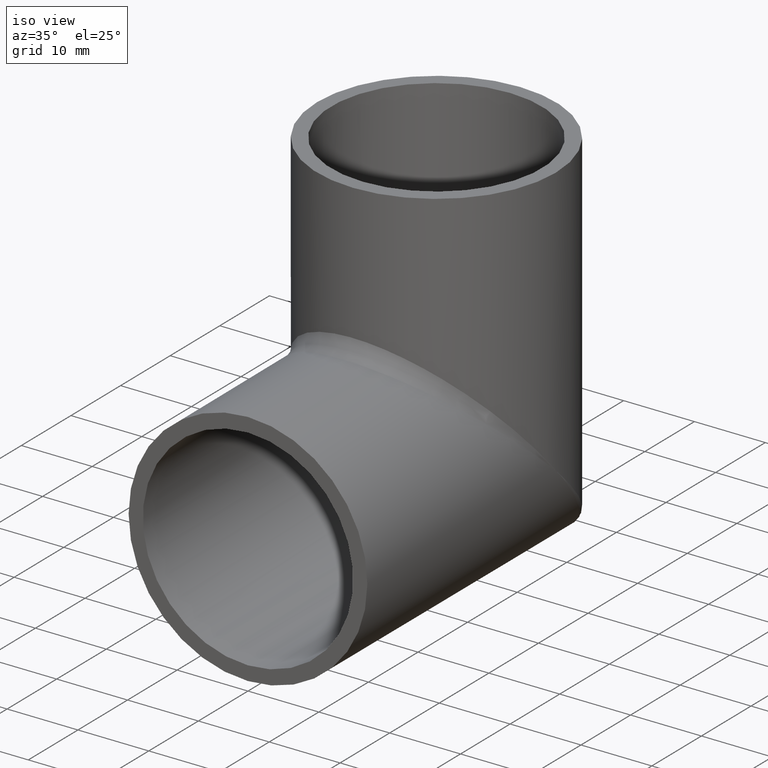
[diagram: clean part render]
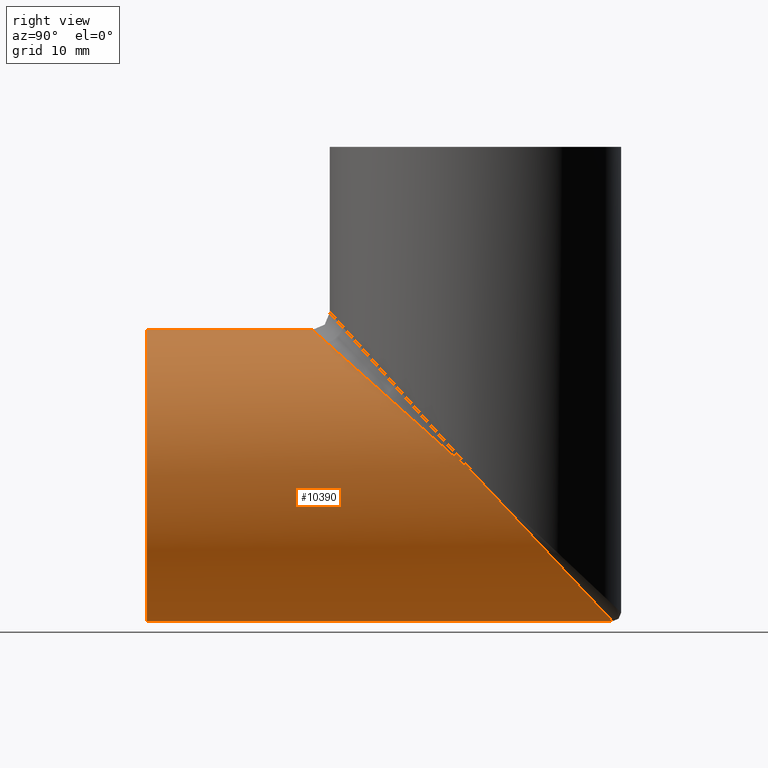
[diagram: tour spotlight — one face highlighted and labeled with its STEP entity id]
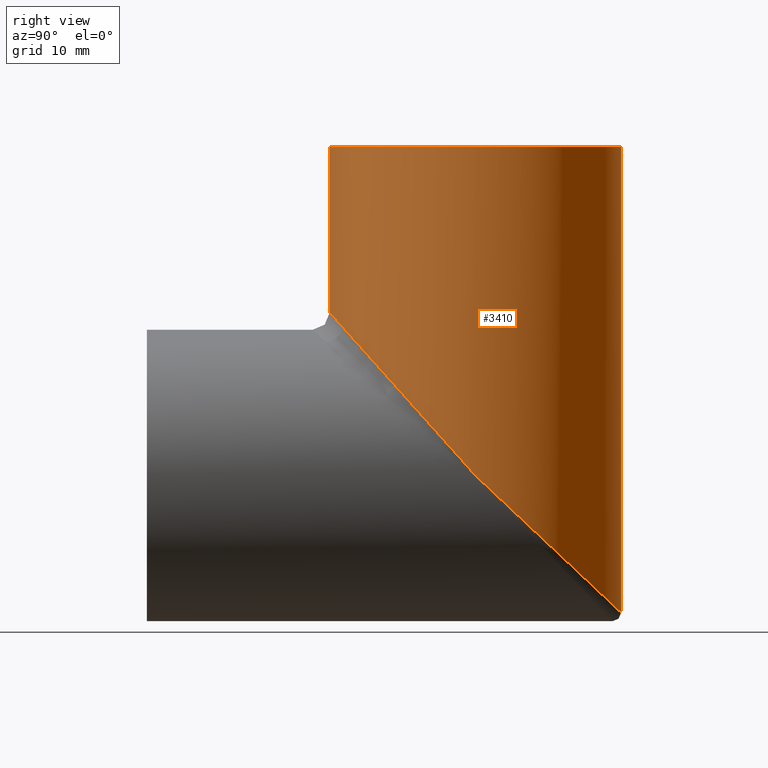
[diagram: tour spotlight — one face highlighted and labeled with its STEP entity id]
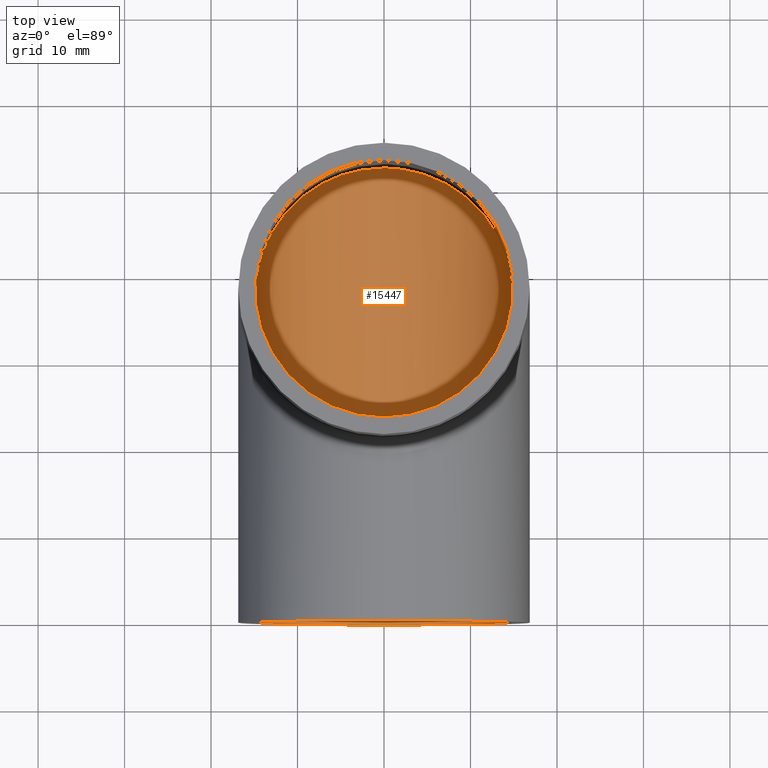
[diagram: tour spotlight — one face highlighted and labeled with its STEP entity id]
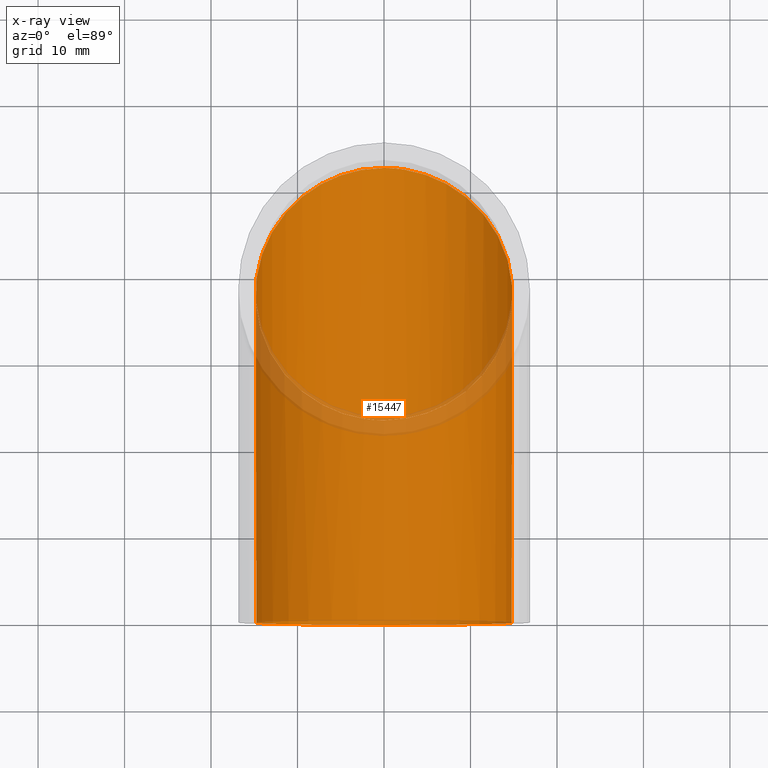
[diagram: x-ray of the same camera — body ghosted, this tour face saturated]
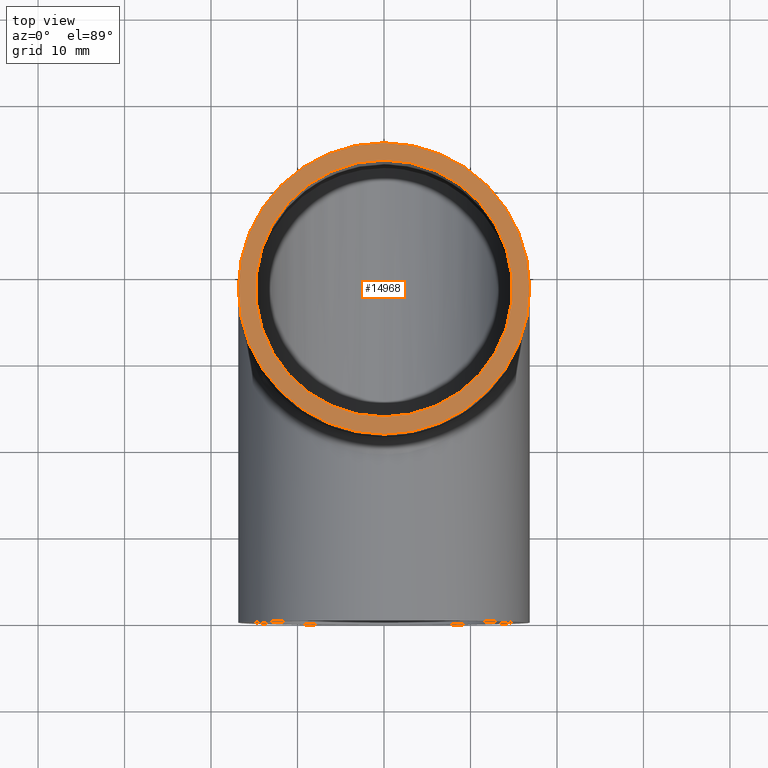
[diagram: tour spotlight — one face highlighted and labeled with its STEP entity id]
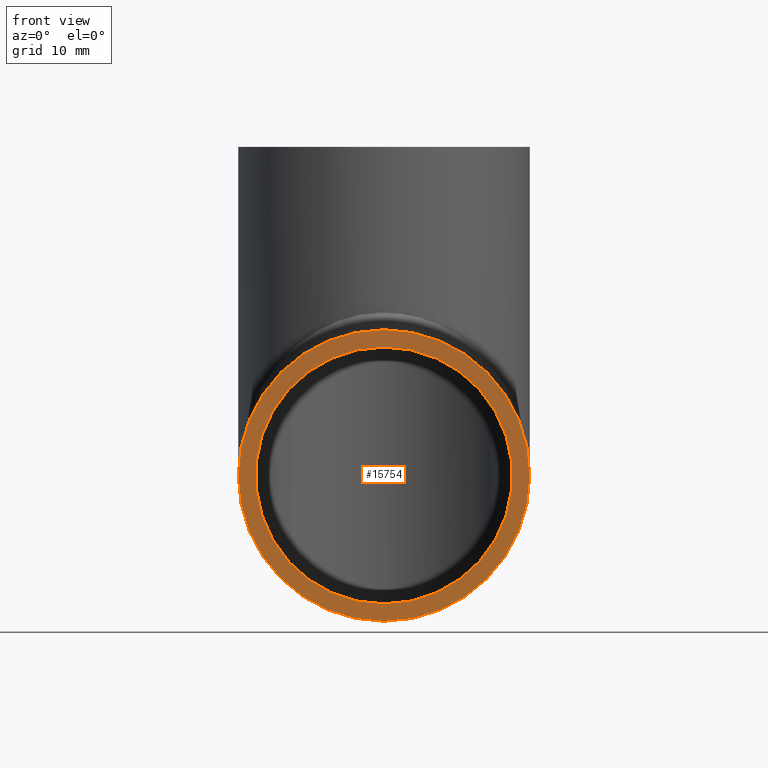
[diagram: tour spotlight — one face highlighted and labeled with its STEP entity id]
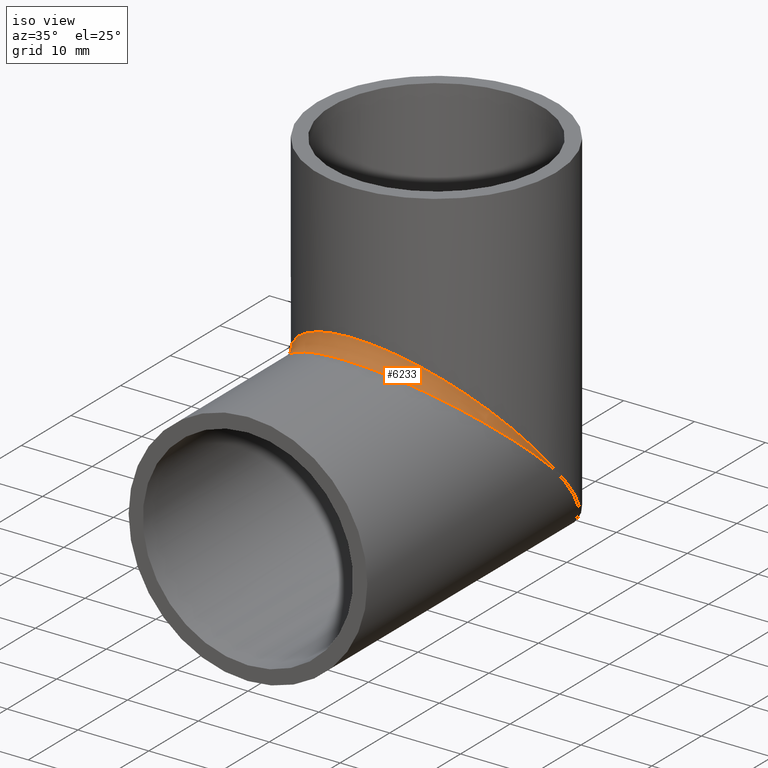
[diagram: tour spotlight — one face highlighted and labeled with its STEP entity id]
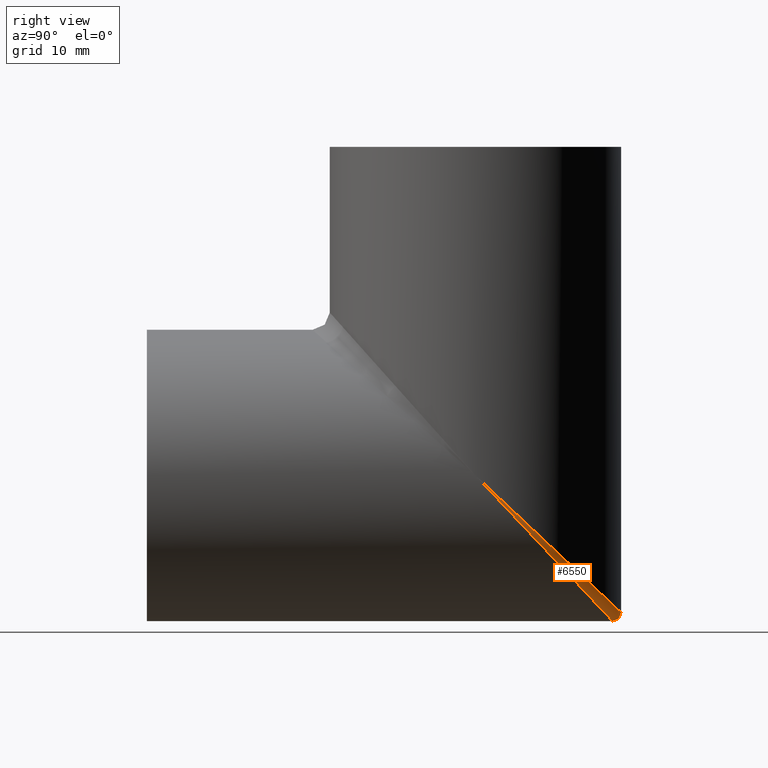
[diagram: tour spotlight — one face highlighted and labeled with its STEP entity id]
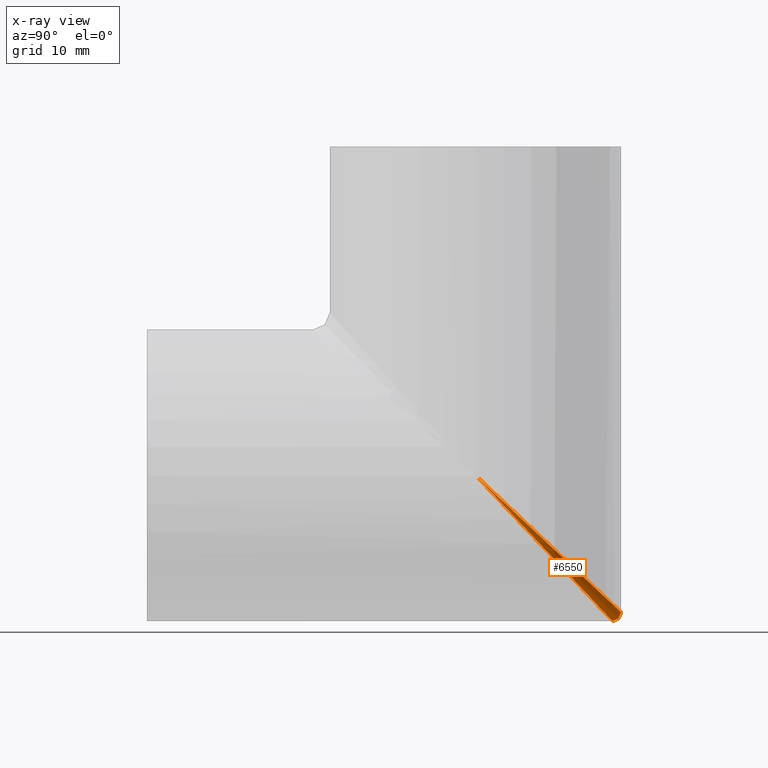
[diagram: x-ray of the same camera — body ghosted, this tour face saturated]
A machine part: a face-by-face anatomy tour. The part has 316 B-rep faces; the first image is the clean iso view, then the 7 largest visible faces are spotlighted one at a time (largest first), each with its STEP entity span.

Face 1 — right view, entity #10390. In plain terms, the highlighted cylindrical surface (bore or boss wall) has radius 16.85 mm, axis along (0, -1, 0).
Definition (entity closure, byte-faithful):
#103 = AXIS2_PLACEMENT_3D ( 'NONE', #13787, #447, #5558 ) ;
#204 = FACE_OUTER_BOUND ( 'NONE', #7675, .T. ) ;
#315 = CARTESIAN_POINT ( 'NONE',  ( 16.85000000000000142, 0.3000000000000085931, 33.69999999999999574 ) ) ;
#447 = DIRECTION ( 'NONE',  ( 0.000000000000000000, 1.000000000000000000, 0.000000000000000000 ) ) ;
#1679 = CARTESIAN_POINT ( 'NONE',  ( -16.85000000000000142, 38.00000000000000000, -7.347880794884122694E-16 ) ) ;
#1846 = CARTESIAN_POINT ( 'NONE',  ( 16.85000000000000142, 38.00000000000000000, -2.189056153475896345E-16 ) ) ;
#1960 = CARTESIAN_POINT ( 'NONE',  ( -16.85000000000000142, 38.00000000000000000, -7.347880794884122694E-16 ) ) ;
#1994 = CARTESIAN_POINT ( 'NONE',  ( -16.84999999999999076, 69.69999999999998863, -33.70000000000000284 ) ) ;
#2688 =( BOUNDED_CURVE ( )  B_SPLINE_CURVE ( 3, ( #3159, #1994, #9320, #1846 ),
 .UNSPECIFIED., .F., .F. ) 
 B_SPLINE_CURVE_WITH_KNOTS ( ( 4, 4 ),
 ( 1.570796326794896780, 4.712388980384689674 ),
 .UNSPECIFIED. ) 
 CURVE ( )  GEOMETRIC_REPRESENTATION_ITEM ( )  RATIONAL_B_SPLINE_CURVE ( ( 1.000000000000000000, 0.3333333333333333703, 0.3333333333333333703, 1.000000000000000000 ) ) 
 REPRESENTATION_ITEM ( '' )  );
#3107 = DIRECTION ( 'NONE',  ( 0.000000000000000000, -1.000000000000000000, 3.867305681517959248E-17 ) ) ;
#3159 = CARTESIAN_POINT ( 'NONE',  ( -16.85000000000000142, 38.00000000000000000, -7.347880794884122694E-16 ) ) ;
#3257 = AXIS2_PLACEMENT_3D ( 'NONE', #5648, #3107, #11746 ) ;
#3487 = EDGE_CURVE ( 'NONE', #12742, #12742, #10950, .T. ) ;
#3822 = EDGE_CURVE ( 'NONE', #6329, #5596, #2688, .T. ) ;
#3878 =( BOUNDED_CURVE ( )  B_SPLINE_CURVE ( 3, ( #12643, #315, #14051, #1679 ),
 .UNSPECIFIED., .F., .F. ) 
 B_SPLINE_CURVE_WITH_KNOTS ( ( 4, 4 ),
 ( 4.712388980384689674, 7.853981633974482790 ),
 .UNSPECIFIED. ) 
 CURVE ( )  GEOMETRIC_REPRESENTATION_ITEM ( )  RATIONAL_B_SPLINE_CURVE ( ( 1.000000000000000000, 0.3333333333333333703, 0.3333333333333333703, 1.000000000000000000 ) ) 
 REPRESENTATION_ITEM ( '' )  );
#5558 = DIRECTION ( 'NONE',  ( 0.000000000000000000, 0.000000000000000000, 1.000000000000000000 ) ) ;
#5596 = VERTEX_POINT ( 'NONE', #7024 ) ;
#5648 = CARTESIAN_POINT ( 'NONE',  ( 0.000000000000000000, 56.63500000000000512, -2.190248572727696322E-15 ) ) ;
#6329 = VERTEX_POINT ( 'NONE', #1960 ) ;
#6405 = FACE_OUTER_BOUND ( 'NONE', #7017, .T. ) ;
#7017 = EDGE_LOOP ( 'NONE', ( #9083 ) ) ;
#7024 = CARTESIAN_POINT ( 'NONE',  ( 16.85000000000000142, 38.00000000000000000, -2.189056153475896345E-16 ) ) ;
#7675 = EDGE_LOOP ( 'NONE', ( #12079, #14971 ) ) ;
#8168 = CYLINDRICAL_SURFACE ( 'NONE', #3257, 16.85000000000000142 ) ;
#9083 = ORIENTED_EDGE ( 'NONE', *, *, #3487, .T. ) ;
#9320 = CARTESIAN_POINT ( 'NONE',  ( 16.84999999999999076, 69.69999999999998863, -33.70000000000000995 ) ) ;
#10390 = ADVANCED_FACE ( 'NONE', ( #204, #6405 ), #8168, .T. ) ;
#10950 = CIRCLE ( 'NONE', #103, 16.85000000000000142 ) ;
#11746 = DIRECTION ( 'NONE',  ( 0.000000000000000000, 0.000000000000000000, -1.000000000000000000 ) ) ;
#12079 = ORIENTED_EDGE ( 'NONE', *, *, #14761, .T. ) ;
#12643 = CARTESIAN_POINT ( 'NONE',  ( 16.85000000000000142, 38.00000000000000000, -2.189056153475896345E-16 ) ) ;
#12693 = CARTESIAN_POINT ( 'NONE',  ( 0.000000000000000000, 0.000000000000000000, 16.85000000000000142 ) ) ;
#12742 = VERTEX_POINT ( 'NONE', #12693 ) ;
#13787 = CARTESIAN_POINT ( 'NONE',  ( 0.000000000000000000, 0.000000000000000000, 0.000000000000000000 ) ) ;
#14051 = CARTESIAN_POINT ( 'NONE',  ( -16.84999999999999076, 0.3000000000000085931, 33.70000000000000284 ) ) ;
#14761 = EDGE_CURVE ( 'NONE', #5596, #6329, #3878, .T. ) ;
#14971 = ORIENTED_EDGE ( 'NONE', *, *, #3822, .T. ) ;

Face 2 — right view, entity #3410. In plain terms, the highlighted cylindrical surface (bore or boss wall) has radius 16.85 mm, axis along (0, 0, -1).
Definition (entity closure, byte-faithful):
#976 = DIRECTION ( 'NONE',  ( 0.000000000000000000, 6.123233995736766036E-17, 1.000000000000000000 ) ) ;
#1184 = EDGE_LOOP ( 'NONE', ( #15584, #12953 ) ) ;
#1575 = EDGE_CURVE ( 'NONE', #6329, #5596, #4791, .T. ) ;
#1790 = AXIS2_PLACEMENT_3D ( 'NONE', #4117, #11610, #7846 ) ;
#1960 = CARTESIAN_POINT ( 'NONE',  ( -16.85000000000000142, 38.00000000000000000, -7.347880794884122694E-16 ) ) ;
#2971 = CIRCLE ( 'NONE', #6333, 16.85000000000000142 ) ;
#3405 = CARTESIAN_POINT ( 'NONE',  ( 16.85000000000000142, 71.69999999999998863, -31.69999999999998508 ) ) ;
#3410 = ADVANCED_FACE ( 'NONE', ( #5942, #12307 ), #15750, .T. ) ;
#4117 = CARTESIAN_POINT ( 'NONE',  ( 0.000000000000000000, 38.00000000000000000, 37.99999999999999289 ) ) ;
#4791 =( BOUNDED_CURVE ( )  B_SPLINE_CURVE ( 3, ( #5685, #6855, #5576, #15622 ),
 .UNSPECIFIED., .F., .F. ) 
 B_SPLINE_CURVE_WITH_KNOTS ( ( 4, 4 ),
 ( 4.712388980384689674, 7.853981633974482790 ),
 .UNSPECIFIED. ) 
 CURVE ( )  GEOMETRIC_REPRESENTATION_ITEM ( )  RATIONAL_B_SPLINE_CURVE ( ( 1.000000000000000000, 0.3333333333333333703, 0.3333333333333333703, 1.000000000000000000 ) ) 
 REPRESENTATION_ITEM ( '' )  );
#5164 = EDGE_LOOP ( 'NONE', ( #14823 ) ) ;
#5576 = CARTESIAN_POINT ( 'NONE',  ( 16.84999999999999432, 4.300000000000012257, 37.69999999999997442 ) ) ;
#5596 = VERTEX_POINT ( 'NONE', #7024 ) ;
#5685 = CARTESIAN_POINT ( 'NONE',  ( -16.85000000000000142, 38.00000000000000000, -7.347880794884122694E-16 ) ) ;
#5868 = CARTESIAN_POINT ( 'NONE',  ( 0.000000000000000000, 38.00000000000000000, 37.99999999999999289 ) ) ;
#5942 = FACE_OUTER_BOUND ( 'NONE', #5164, .T. ) ;
#6329 = VERTEX_POINT ( 'NONE', #1960 ) ;
#6333 = AXIS2_PLACEMENT_3D ( 'NONE', #5868, #976, #9651 ) ;
#6583 = CARTESIAN_POINT ( 'NONE',  ( 0.000000000000000000, 21.14999999999999858, 37.99999999999999289 ) ) ;
#6855 = CARTESIAN_POINT ( 'NONE',  ( -16.85000000000000497, 4.300000000000012257, 37.69999999999997442 ) ) ;
#7024 = CARTESIAN_POINT ( 'NONE',  ( 16.85000000000000142, 38.00000000000000000, -2.189056153475896345E-16 ) ) ;
#7846 = DIRECTION ( 'NONE',  ( -1.000000000000000000, 0.000000000000000000, 0.000000000000000000 ) ) ;
#8332 = CARTESIAN_POINT ( 'NONE',  ( 16.85000000000000142, 38.00000000000000000, -2.189056153475896345E-16 ) ) ;
#9651 = DIRECTION ( 'NONE',  ( 0.000000000000000000, -1.000000000000000000, 0.000000000000000000 ) ) ;
#9842 = EDGE_CURVE ( 'NONE', #12946, #12946, #2971, .T. ) ;
#11610 = DIRECTION ( 'NONE',  ( 0.000000000000000000, 0.000000000000000000, -1.000000000000000000 ) ) ;
#12307 = FACE_OUTER_BOUND ( 'NONE', #1184, .T. ) ;
#12697 =( BOUNDED_CURVE ( )  B_SPLINE_CURVE ( 3, ( #8332, #3405, #14513, #13167 ),
 .UNSPECIFIED., .F., .F. ) 
 B_SPLINE_CURVE_WITH_KNOTS ( ( 4, 4 ),
 ( 1.570796326794896558, 4.712388980384689674 ),
 .UNSPECIFIED. ) 
 CURVE ( )  GEOMETRIC_REPRESENTATION_ITEM ( )  RATIONAL_B_SPLINE_CURVE ( ( 1.000000000000000000, 0.3333333333333333703, 0.3333333333333333703, 1.000000000000000000 ) ) 
 REPRESENTATION_ITEM ( '' )  );
#12946 = VERTEX_POINT ( 'NONE', #6583 ) ;
#12953 = ORIENTED_EDGE ( 'NONE', *, *, #14996, .T. ) ;
#13167 = CARTESIAN_POINT ( 'NONE',  ( -16.85000000000000142, 38.00000000000000000, -7.347880794884122694E-16 ) ) ;
#14513 = CARTESIAN_POINT ( 'NONE',  ( -16.84999999999999076, 71.69999999999998863, -31.69999999999999218 ) ) ;
#14823 = ORIENTED_EDGE ( 'NONE', *, *, #9842, .F. ) ;
#14996 = EDGE_CURVE ( 'NONE', #5596, #6329, #12697, .T. ) ;
#15584 = ORIENTED_EDGE ( 'NONE', *, *, #1575, .T. ) ;
#15622 = CARTESIAN_POINT ( 'NONE',  ( 16.85000000000000142, 38.00000000000000000, -2.189056153475896345E-16 ) ) ;
#15750 = CYLINDRICAL_SURFACE ( 'NONE', #1790, 16.85000000000000142 ) ;

Face 3 — top view, entity #15447. An x-ray twin of the same camera follows (body ghosted, this face saturated) — the face is partly hidden behind the body. In plain terms, the highlighted cylindrical surface (bore or boss wall) has radius 14.85 mm, axis along (0, -1, 0).
Definition (entity closure, byte-faithful):
#290 = EDGE_LOOP ( 'NONE', ( #11003 ) ) ;
#926 = DIRECTION ( 'NONE',  ( 0.000000000000000000, -1.000000000000000000, 3.867305681517958632E-17 ) ) ;
#941 = CYLINDRICAL_SURFACE ( 'NONE', #4618, 14.85000000000000142 ) ;
#2648 = CARTESIAN_POINT ( 'NONE',  ( 0.000000000000000000, 0.000000000000000000, 14.85000000000000142 ) ) ;
#3201 = CARTESIAN_POINT ( 'NONE',  ( 0.000000000000000000, 0.000000000000000000, 0.000000000000000000 ) ) ;
#3740 = CARTESIAN_POINT ( 'NONE',  ( 0.000000000000000000, 52.85000000000000142, -14.85000000000000142 ) ) ;
#4237 = DIRECTION ( 'NONE',  ( -0.000000000000000000, -1.000000000000000000, -0.000000000000000000 ) ) ;
#4239 = EDGE_CURVE ( 'NONE', #8900, #8900, #12290, .T. ) ;
#4291 = DIRECTION ( 'NONE',  ( 0.000000000000000000, 0.000000000000000000, 1.000000000000000000 ) ) ;
#4467 = FACE_OUTER_BOUND ( 'NONE', #290, .T. ) ;
#4618 = AXIS2_PLACEMENT_3D ( 'NONE', #14651, #926, #7267 ) ;
#4948 = CARTESIAN_POINT ( 'NONE',  ( -29.70000000000000995, 52.85000000000000853, -14.85000000000000142 ) ) ;
#6060 = ORIENTED_EDGE ( 'NONE', *, *, #9941, .T. ) ;
#7267 = DIRECTION ( 'NONE',  ( 0.000000000000000000, 0.000000000000000000, -1.000000000000000000 ) ) ;
#8512 = CARTESIAN_POINT ( 'NONE',  ( -29.70000000000000995, 23.15000000000000213, 14.84999999999999964 ) ) ;
#8868 = EDGE_LOOP ( 'NONE', ( #6060 ) ) ;
#8900 = VERTEX_POINT ( 'NONE', #2648 ) ;
#9941 = EDGE_CURVE ( 'NONE', #15616, #15616, #15825, .T. ) ;
#9972 = CARTESIAN_POINT ( 'NONE',  ( -1.818600496733820342E-15, 23.14999999999999858, 14.85000000000000142 ) ) ;
#11003 = ORIENTED_EDGE ( 'NONE', *, *, #4239, .T. ) ;
#11148 = CARTESIAN_POINT ( 'NONE',  ( 29.70000000000000284, 23.14999999999999503, 14.85000000000000497 ) ) ;
#12290 = CIRCLE ( 'NONE', #14326, 14.85000000000000142 ) ;
#13460 = CARTESIAN_POINT ( 'NONE',  ( 29.70000000000000995, 52.85000000000000853, -14.85000000000000142 ) ) ;
#13612 = CARTESIAN_POINT ( 'NONE',  ( 0.000000000000000000, 52.85000000000000142, -14.85000000000000142 ) ) ;
#13872 = CARTESIAN_POINT ( 'NONE',  ( 0.000000000000000000, 52.85000000000000142, -14.85000000000000142 ) ) ;
#14326 = AXIS2_PLACEMENT_3D ( 'NONE', #3201, #4237, #4291 ) ;
#14651 = CARTESIAN_POINT ( 'NONE',  ( 0.000000000000000000, 54.43500000000000227, -2.105167847734300999E-15 ) ) ;
#15266 = FACE_OUTER_BOUND ( 'NONE', #8868, .T. ) ;
#15447 = ADVANCED_FACE ( 'NONE', ( #4467, #15266 ), #941, .F. ) ;
#15616 = VERTEX_POINT ( 'NONE', #13872 ) ;
#15825 =( BOUNDED_CURVE ( )  B_SPLINE_CURVE ( 3, ( #13612, #4948, #8512, #9972, #11148, #13460, #3740 ),
 .UNSPECIFIED., .T., .F. ) 
 B_SPLINE_CURVE_WITH_KNOTS ( ( 4, 3, 4 ),
 ( 0.000000000000000000, 3.141592653589793116, 6.283185307179586232 ),
 .UNSPECIFIED. ) 
 CURVE ( )  GEOMETRIC_REPRESENTATION_ITEM ( )  RATIONAL_B_SPLINE_CURVE ( ( 1.000000000000000000, 0.3333333333333333703, 0.3333333333333333703, 1.000000000000000000, 0.3333333333333333703, 0.3333333333333333703, 1.000000000000000000 ) ) 
 REPRESENTATION_ITEM ( '' )  );

Face 4 — top view, entity #14968. In plain terms, the highlighted planar face has unit normal (0, 0, 1).
Definition (entity closure, byte-faithful):
#393 = FACE_BOUND ( 'NONE', #11993, .T. ) ;
#976 = DIRECTION ( 'NONE',  ( 0.000000000000000000, 6.123233995736766036E-17, 1.000000000000000000 ) ) ;
#1003 = CARTESIAN_POINT ( 'NONE',  ( 0.000000000000000000, 38.00000000000000000, 37.99999999999999289 ) ) ;
#2842 = CARTESIAN_POINT ( 'NONE',  ( 0.000000000000000000, 38.00000000000000000, 37.99999999999999289 ) ) ;
#2971 = CIRCLE ( 'NONE', #6333, 16.85000000000000142 ) ;
#4548 = DIRECTION ( 'NONE',  ( 0.000000000000000000, 6.123233995736766036E-17, 1.000000000000000000 ) ) ;
#5327 = DIRECTION ( 'NONE',  ( 0.000000000000000000, -1.000000000000000000, 0.000000000000000000 ) ) ;
#5868 = CARTESIAN_POINT ( 'NONE',  ( 0.000000000000000000, 38.00000000000000000, 37.99999999999999289 ) ) ;
#5943 = PLANE ( 'NONE',  #8251 ) ;
#6333 = AXIS2_PLACEMENT_3D ( 'NONE', #5868, #976, #9651 ) ;
#6583 = CARTESIAN_POINT ( 'NONE',  ( 0.000000000000000000, 21.14999999999999858, 37.99999999999999289 ) ) ;
#7682 = CARTESIAN_POINT ( 'NONE',  ( 0.000000000000000000, 23.14999999999999858, 37.99999999999999289 ) ) ;
#8251 = AXIS2_PLACEMENT_3D ( 'NONE', #1003, #4548, #13220 ) ;
#8366 = ORIENTED_EDGE ( 'NONE', *, *, #8808, .T. ) ;
#8808 = EDGE_CURVE ( 'NONE', #15985, #15985, #9375, .T. ) ;
#8955 = DIRECTION ( 'NONE',  ( -0.000000000000000000, -6.123233995736766036E-17, -1.000000000000000000 ) ) ;
#9309 = FACE_OUTER_BOUND ( 'NONE', #12316, .T. ) ;
#9375 = CIRCLE ( 'NONE', #15730, 14.85000000000000142 ) ;
#9651 = DIRECTION ( 'NONE',  ( 0.000000000000000000, -1.000000000000000000, 0.000000000000000000 ) ) ;
#9842 = EDGE_CURVE ( 'NONE', #12946, #12946, #2971, .T. ) ;
#11993 = EDGE_LOOP ( 'NONE', ( #8366 ) ) ;
#12316 = EDGE_LOOP ( 'NONE', ( #15569 ) ) ;
#12946 = VERTEX_POINT ( 'NONE', #6583 ) ;
#13220 = DIRECTION ( 'NONE',  ( 0.000000000000000000, -1.000000000000000000, 6.123233995736766036E-17 ) ) ;
#14968 = ADVANCED_FACE ( 'NONE', ( #9309, #393 ), #5943, .T. ) ;
#15569 = ORIENTED_EDGE ( 'NONE', *, *, #9842, .T. ) ;
#15730 = AXIS2_PLACEMENT_3D ( 'NONE', #2842, #8955, #5327 ) ;
#15985 = VERTEX_POINT ( 'NONE', #7682 ) ;

Face 5 — front view, entity #15754. In plain terms, the highlighted planar face has unit normal (0, 1, 0).
Definition (entity closure, byte-faithful):
#103 = AXIS2_PLACEMENT_3D ( 'NONE', #13787, #447, #5558 ) ;
#447 = DIRECTION ( 'NONE',  ( 0.000000000000000000, 1.000000000000000000, 0.000000000000000000 ) ) ;
#1529 = ORIENTED_EDGE ( 'NONE', *, *, #3487, .F. ) ;
#2648 = CARTESIAN_POINT ( 'NONE',  ( 0.000000000000000000, 0.000000000000000000, 14.85000000000000142 ) ) ;
#3201 = CARTESIAN_POINT ( 'NONE',  ( 0.000000000000000000, 0.000000000000000000, 0.000000000000000000 ) ) ;
#3487 = EDGE_CURVE ( 'NONE', #12742, #12742, #10950, .T. ) ;
#4237 = DIRECTION ( 'NONE',  ( -0.000000000000000000, -1.000000000000000000, -0.000000000000000000 ) ) ;
#4239 = EDGE_CURVE ( 'NONE', #8900, #8900, #12290, .T. ) ;
#4291 = DIRECTION ( 'NONE',  ( 0.000000000000000000, 0.000000000000000000, 1.000000000000000000 ) ) ;
#5558 = DIRECTION ( 'NONE',  ( 0.000000000000000000, 0.000000000000000000, 1.000000000000000000 ) ) ;
#6431 = ORIENTED_EDGE ( 'NONE', *, *, #4239, .F. ) ;
#6607 = DIRECTION ( 'NONE',  ( 0.000000000000000000, 1.000000000000000000, 0.000000000000000000 ) ) ;
#6666 = CARTESIAN_POINT ( 'NONE',  ( 0.000000000000000000, 0.000000000000000000, 0.000000000000000000 ) ) ;
#8900 = VERTEX_POINT ( 'NONE', #2648 ) ;
#9331 = DIRECTION ( 'NONE',  ( 0.000000000000000000, -0.000000000000000000, 1.000000000000000000 ) ) ;
#10950 = CIRCLE ( 'NONE', #103, 16.85000000000000142 ) ;
#11204 = FACE_BOUND ( 'NONE', #14503, .T. ) ;
#11805 = FACE_OUTER_BOUND ( 'NONE', #15737, .T. ) ;
#12290 = CIRCLE ( 'NONE', #14326, 14.85000000000000142 ) ;
#12693 = CARTESIAN_POINT ( 'NONE',  ( 0.000000000000000000, 0.000000000000000000, 16.85000000000000142 ) ) ;
#12742 = VERTEX_POINT ( 'NONE', #12693 ) ;
#13703 = AXIS2_PLACEMENT_3D ( 'NONE', #6666, #6607, #9331 ) ;
#13787 = CARTESIAN_POINT ( 'NONE',  ( 0.000000000000000000, 0.000000000000000000, 0.000000000000000000 ) ) ;
#14326 = AXIS2_PLACEMENT_3D ( 'NONE', #3201, #4237, #4291 ) ;
#14503 = EDGE_LOOP ( 'NONE', ( #6431 ) ) ;
#15404 = PLANE ( 'NONE',  #13703 ) ;
#15737 = EDGE_LOOP ( 'NONE', ( #1529 ) ) ;
#15754 = ADVANCED_FACE ( 'NONE', ( #11805, #11204 ), #15404, .F. ) ;

Face 6 — iso view, entity #6233. In plain terms, the highlighted face is a freeform B-spline surface patch.
Definition (entity closure, byte-faithful):
#315 = CARTESIAN_POINT ( 'NONE',  ( 16.85000000000000142, 0.3000000000000085931, 33.69999999999999574 ) ) ;
#446 = CARTESIAN_POINT ( 'NONE',  ( 15.98940486222993229, 32.57066615633593898, 6.073765160414883013 ) ) ;
#502 = CARTESIAN_POINT ( 'NONE',  ( 15.98940486223173529, 31.92623483958584174, 5.429333843659704506 ) ) ;
#552 = CARTESIAN_POINT ( 'NONE',  ( 16.31108053040873429, 33.63108872088008638, 4.887476416107889854 ) ) ;
#604 = CARTESIAN_POINT ( 'NONE',  ( -6.841683474856213643, 22.55277972478811321, 15.44722027520963792 ) ) ;
#657 = CARTESIAN_POINT ( 'NONE',  ( -7.467097826883360767, 21.05699869564766757, 15.14533538346507946 ) ) ;
#975 = CARTESIAN_POINT ( 'NONE',  ( -16.84999999999091713, 36.83171811833036458, 1.168281881654203103 ) ) ;
#1085 = CARTESIAN_POINT ( 'NONE',  ( -14.62296244337610851, 29.55561114030049907, 9.446690208029487223 ) ) ;
#1575 = EDGE_CURVE ( 'NONE', #6329, #5596, #4791, .T. ) ;
#1644 = CARTESIAN_POINT ( 'NONE',  ( 16.84999999999999787, 38.00000000000000000, -4.052760684178309745E-15 ) ) ;
#1679 = CARTESIAN_POINT ( 'NONE',  ( -16.85000000000000142, 38.00000000000000000, -7.347880794884122694E-16 ) ) ;
#1703 = CARTESIAN_POINT ( 'NONE',  ( 13.39756349121943657, 26.50169242319465468, 10.27832799306142419 ) ) ;
#1755 = CARTESIAN_POINT ( 'NONE',  ( 10.27832799298520428, 23.01222125753857384, 13.39756349127036295 ) ) ;
#1810 = CARTESIAN_POINT ( 'NONE',  ( 13.39756349121879353, 27.72167200693761302, 11.49830757680673798 ) ) ;
#1863 = CARTESIAN_POINT ( 'NONE',  ( -8.444388859773134470, 21.64137435865059444, 14.62296244332690343 ) ) ;
#1907 = CARTESIAN_POINT ( 'NONE',  ( -0.9719302274875158965, 21.15000000000000213, 16.84999999999999432 ) ) ;
#1960 = CARTESIAN_POINT ( 'NONE',  ( -16.85000000000000142, 38.00000000000000000, -7.347880794884122694E-16 ) ) ;
#2232 = CARTESIAN_POINT ( 'NONE',  ( -13.39756349121964263, 27.72167200693888134, 11.49830757680954108 ) ) ;
#2283 = CARTESIAN_POINT ( 'NONE',  ( -16.24645224185750081, 33.37203828235949743, 4.627961717641634110 ) ) ;
#2338 = CARTESIAN_POINT ( 'NONE',  ( -10.59356464496863559, 24.82714908302926204, 13.17285091696537691 ) ) ;
#2390 = CARTESIAN_POINT ( 'NONE',  ( -14.94760928317030135, 30.12161921453028413, 7.878380785462338665 ) ) ;
#2964 = CARTESIAN_POINT ( 'NONE',  ( 5.429333843819349248, 20.11274292867453539, 15.98940486216561574 ) ) ;
#3021 = CARTESIAN_POINT ( 'NONE',  ( 13.02486832433156927, 27.22941627867600545, 10.77058372131266140 ) ) ;
#3066 = CARTESIAN_POINT ( 'NONE',  ( 7.814244703549674931, 23.01287431941067041, 14.98712568058932959 ) ) ;
#3118 = CARTESIAN_POINT ( 'NONE',  ( 2.205632573053358136, 19.27150875663534890, 16.74138341913442929 ) ) ;
#3176 = CARTESIAN_POINT ( 'NONE',  ( -3.894819140855695583, 21.57030898564315180, 16.42969101435684820 ) ) ;
#3484 = CARTESIAN_POINT ( 'NONE',  ( -16.84999999999999787, 38.00000000000005684, -6.654921131668145886E-14 ) ) ;
#3639 = CARTESIAN_POINT ( 'NONE',  ( -10.27832799298744959, 24.60243650873113097, 14.98777874245654296 ) ) ;
#3878 =( BOUNDED_CURVE ( )  B_SPLINE_CURVE ( 3, ( #12643, #315, #14051, #1679 ),
 .UNSPECIFIED., .F., .F. ) 
 B_SPLINE_CURVE_WITH_KNOTS ( ( 4, 4 ),
 ( 4.712388980384689674, 7.853981633974482790 ),
 .UNSPECIFIED. ) 
 CURVE ( )  GEOMETRIC_REPRESENTATION_ITEM ( )  RATIONAL_B_SPLINE_CURVE ( ( 1.000000000000000000, 0.3333333333333333703, 0.3333333333333333703, 1.000000000000000000 ) ) 
 REPRESENTATION_ITEM ( '' )  );
#4151 = CARTESIAN_POINT ( 'NONE',  ( 16.84999999999091713, 36.83171811834322540, 1.168281881665555355 ) ) ;
#4205 = CARTESIAN_POINT ( 'NONE',  ( 4.368911278890206695, 19.75288617216288145, 16.31108053045441864 ) ) ;
#4259 = CARTESIAN_POINT ( 'NONE',  ( -1.102829920589202928, 19.15000000000000213, 16.84999999999999432 ) ) ;
#4316 = CARTESIAN_POINT ( 'NONE',  ( 14.36475615415073470, 29.10595747635980501, 8.894042523651139120 ) ) ;
#4369 = CARTESIAN_POINT ( 'NONE',  ( 12.25683784730275683, 26.36695010241284010, 11.63304989757818042 ) ) ;
#4414 = CARTESIAN_POINT ( 'NONE',  ( -5.429333843820111305, 20.11274292867680913, 15.98940486216529244 ) ) ;
#4465 = CARTESIAN_POINT ( 'NONE',  ( -12.25683784730139969, 26.36695010242302928, 11.63304989758209729 ) ) ;
#4726 = CARTESIAN_POINT ( 'NONE',  ( -15.88346993345684055, 32.25047585536667327, 5.749524144640512979 ) ) ;
#4791 =( BOUNDED_CURVE ( )  B_SPLINE_CURVE ( 3, ( #5685, #6855, #5576, #15622 ),
 .UNSPECIFIED., .F., .F. ) 
 B_SPLINE_CURVE_WITH_KNOTS ( ( 4, 4 ),
 ( 4.712388980384689674, 7.853981633974482790 ),
 .UNSPECIFIED. ) 
 CURVE ( )  GEOMETRIC_REPRESENTATION_ITEM ( )  RATIONAL_B_SPLINE_CURVE ( ( 1.000000000000000000, 0.3333333333333333703, 0.3333333333333333703, 1.000000000000000000 ) ) 
 REPRESENTATION_ITEM ( '' )  );
#4893 = CARTESIAN_POINT ( 'NONE',  ( -16.84999999999999787, 38.00000000000006395, -6.309671077781118824E-14 ) ) ;
#5389 = CARTESIAN_POINT ( 'NONE',  ( 16.84999999999999787, 36.89715756881358288, 1.233743609966486909 ) ) ;
#5447 = CARTESIAN_POINT ( 'NONE',  ( 6.841683474856915304, 22.55277972479266069, 15.44722027520734464 ) ) ;
#5506 = CARTESIAN_POINT ( 'NONE',  ( 15.88346993345520275, 32.25047585535472194, 5.749524144633054057 ) ) ;
#5557 = CARTESIAN_POINT ( 'NONE',  ( 11.13493074752972056, 25.30543222154306804, 14.20134140201470707 ) ) ;
#5576 = CARTESIAN_POINT ( 'NONE',  ( 16.84999999999999432, 4.300000000000012257, 37.69999999999997442 ) ) ;
#5596 = VERTEX_POINT ( 'NONE', #7024 ) ;
#5609 = CARTESIAN_POINT ( 'NONE',  ( -4.368911278889911820, 21.68891946954552452, 18.24711382783712565 ) ) ;
#5659 = CARTESIAN_POINT ( 'NONE',  ( -1.102829920589202928, 21.15000000000000568, 18.84999999999999432 ) ) ;
#5685 = CARTESIAN_POINT ( 'NONE',  ( -16.85000000000000142, 38.00000000000000000, -7.347880794884122694E-16 ) ) ;
#5968 = CARTESIAN_POINT ( 'NONE',  ( -15.14533538339891905, 29.64659976025319565, 7.467097827043078340 ) ) ;
#6076 = CARTESIAN_POINT ( 'NONE',  ( -13.02486832433148756, 27.22941627868438985, 10.77058372132127140 ) ) ;
#6233 = ADVANCED_FACE ( 'NONE', ( #9044 ), #11298, .F. ) ;
#6329 = VERTEX_POINT ( 'NONE', #1960 ) ;
#6615 = CARTESIAN_POINT ( 'NONE',  ( 7.467097826884216083, 21.05699869564998039, 15.14533538346472419 ) ) ;
#6672 = CARTESIAN_POINT ( 'NONE',  ( 0.9719302274874632719, 21.15000000000000213, 16.84999999999999432 ) ) ;
#6727 = CARTESIAN_POINT ( 'NONE',  ( 2.205632573053358136, 21.25861658086556716, 18.72849124336465110 ) ) ;
#6745 = ORIENTED_EDGE ( 'NONE', *, *, #14761, .F. ) ;
#6779 = CARTESIAN_POINT ( 'NONE',  ( 1.102829920589143198, 21.14999999999999858, 18.84999999999999432 ) ) ;
#6840 = CARTESIAN_POINT ( 'NONE',  ( -8.444388859773134470, 23.37703755667309125, 16.35862564134940556 ) ) ;
#6855 = CARTESIAN_POINT ( 'NONE',  ( -16.85000000000000497, 4.300000000000012257, 37.69999999999997442 ) ) ;
#7024 = CARTESIAN_POINT ( 'NONE',  ( 16.85000000000000142, 38.00000000000000000, -2.189056153475896345E-16 ) ) ;
#7144 = CARTESIAN_POINT ( 'NONE',  ( -15.98940486223219004, 32.57066615634138174, 6.073765160416391140 ) ) ;
#7880 = CARTESIAN_POINT ( 'NONE',  ( 11.13493074752775414, 23.79865859798660210, 12.69456777845889661 ) ) ;
#7934 = CARTESIAN_POINT ( 'NONE',  ( 1.932918336353706579, 21.22927170484489068, 16.77072829515510577 ) ) ;
#7958 = EDGE_LOOP ( 'NONE', ( #6745, #16021 ) ) ;
#7988 = CARTESIAN_POINT ( 'NONE',  ( -2.205632573053587286, 21.25861658086561690, 18.72849124336465820 ) ) ;
#8040 = CARTESIAN_POINT ( 'NONE',  ( -4.875397281212603851, 21.82574146541553617, 16.17425853458680152 ) ) ;
#8091 = CARTESIAN_POINT ( 'NONE',  ( 15.14533538340044139, 30.53290217296058984, 8.353400239748937750 ) ) ;
#9044 = FACE_OUTER_BOUND ( 'NONE', #7958, .T. ) ;
#9080 = CARTESIAN_POINT ( 'NONE',  ( 16.84999999999999787, 38.00000000000000000, -3.908044464279066606E-15 ) ) ;
#9133 = CARTESIAN_POINT ( 'NONE',  ( 14.62296244337633411, 28.55330979196635610, 8.444388859699158090 ) ) ;
#9186 = CARTESIAN_POINT ( 'NONE',  ( 12.69456777845895878, 25.54341575128063724, 11.13493074752768131 ) ) ;
#9236 = CARTESIAN_POINT ( 'NONE',  ( 15.14533538339863838, 29.64659976025033572, 7.467097827043762237 ) ) ;
#9283 = CARTESIAN_POINT ( 'NONE',  ( 10.27832799298605160, 24.60243650873020371, 14.98777874246142616 ) ) ;
#9340 = CARTESIAN_POINT ( 'NONE',  ( 5.429333843819754257, 22.01059513783455301, 17.88725707132546461 ) ) ;
#9649 = CARTESIAN_POINT ( 'NONE',  ( -16.74138341918027351, 35.53257127610134347, 2.205632572822894932 ) ) ;
#9758 = CARTESIAN_POINT ( 'NONE',  ( -16.31108053040857797, 33.11252358389057093, 4.368911279120663238 ) ) ;
#10091 = CARTESIAN_POINT ( 'NONE',  ( 16.74138341918020956, 35.53257127609538912, 2.205632572823220894 ) ) ;
#10327 = CARTESIAN_POINT ( 'NONE',  ( 16.84999999999999787, 38.00000000000000000, -4.197476904077552094E-15 ) ) ;
#10379 = CARTESIAN_POINT ( 'NONE',  ( 8.444388859775415312, 21.64137435865550430, 14.62296244332538109 ) ) ;
#10433 = CARTESIAN_POINT ( 'NONE',  ( 8.444388859774569767, 23.37703755667405403, 16.35862564134449570 ) ) ;
#10484 = CARTESIAN_POINT ( 'NONE',  ( 10.59356464496736905, 24.82714908304004453, 13.17285091696933108 ) ) ;
#10536 = CARTESIAN_POINT ( 'NONE',  ( -7.814244703549369397, 23.01287431940296813, 14.98712568059326955 ) ) ;
#10583 = CARTESIAN_POINT ( 'NONE',  ( -10.27832799298744959, 23.01222125754345527, 13.39756349126886370 ) ) ;
#10892 = CARTESIAN_POINT ( 'NONE',  ( -15.14533538339814811, 30.53290217295505471, 8.353400239747530875 ) ) ;
#10986 = CARTESIAN_POINT ( 'NONE',  ( -12.69456777845824291, 26.86506925247159216, 12.45658424871812819 ) ) ;
#11043 = CARTESIAN_POINT ( 'NONE',  ( -16.31108053040872008, 33.63108872088005086, 4.887476416108301969 ) ) ;
#11298 =( BOUNDED_SURFACE ( )  B_SPLINE_SURFACE ( 3, 2, ( 
 ( #9080, #1644, #10327 ),
 ( #11530, #4151, #5389 ),
 ( #10091, #15253, #12932 ),
 ( #15453, #15311, #552 ),
 ( #502, #5506, #446 ),
 ( #9236, #11756, #8091 ),
 ( #9133, #4316, #12827 ),
 ( #1703, #3021, #1810 ),
 ( #9186, #4369, #15359 ),
 ( #7880, #10484, #5557 ),
 ( #1755, #11804, #9283 ),
 ( #10379, #3066, #10433 ),
 ( #6615, #5447, #14182 ),
 ( #2964, #11591, #9340 ),
 ( #4205, #11698, #11646 ),
 ( #3118, #7934, #6727 ),
 ( #14074, #6672, #6779 ),
 ( #4259, #1907, #5659 ),
 ( #12882, #14130, #7988 ),
 ( #15408, #3176, #5609 ),
 ( #4414, #8040, #12988 ),
 ( #657, #604, #14230 ),
 ( #1863, #10536, #6840 ),
 ( #10583, #13035, #3639 ),
 ( #12117, #2338, #12168 ),
 ( #11860, #4465, #10986 ),
 ( #13357, #6076, #2232 ),
 ( #13459, #15870, #1085 ),
 ( #5968, #2390, #10892 ),
 ( #13506, #4726, #7144 ),
 ( #9758, #2283, #11043 ),
 ( #9649, #14539, #13085 ),
 ( #14641, #975, #12279 ),
 ( #14281, #4893, #3484 ) ),
 .UNSPECIFIED., .F., .F., .T. ) 
 B_SPLINE_SURFACE_WITH_KNOTS ( ( 4, 2, 2, 2, 2, 2, 2, 2, 2, 2, 2, 2, 2, 2, 2, 2, 4 ),
 ( 3, 3 ),
 ( 4.712388980384689674, 4.908738521234051966, 5.105088062083414258, 5.301437602932775661, 5.497787143782137953, 5.694136684631500245, 5.890486225480861648, 6.086835766330223940, 6.283185307179586232, 6.479534848028948524, 6.675884388878310816, 6.872233929727672219, 7.068583470577034511, 7.264933011426396803, 7.461282552275758206, 7.657632093125120498, 7.853981633974482790 ),
 ( 0.000000000000000000, 1.000000000000000000 ),
 .UNSPECIFIED. ) 
 GEOMETRIC_REPRESENTATION_ITEM ( )  RATIONAL_B_SPLINE_SURFACE ( (
 ( 1.000000000000000000, 1.000000000000000000, 1.000000000000000000),
 ( 1.000000000000000000, 1.000009746409824762, 1.000000000000000000),
 ( 1.000000000000000000, 0.9967613244619129009, 1.000000000000000000),
 ( 1.000000000000000000, 0.9841171504858279295, 1.000000000000000000),
 ( 1.000000000000000000, 0.9747108043669845401, 1.000000000000000000),
 ( 1.000000000000000000, 0.9506740353953286871, 1.000000000000000000),
 ( 1.000000000000000000, 0.9360421842758440691, 1.000000000000000000),
 ( 1.000000000000000000, 0.9031650994105515640, 1.000000000000000000),
 ( 1.000000000000000000, 0.8849191471401952613, 1.000000000000000000),
 ( 1.000000000000000000, 0.8471316604286837082, 1.000000000000000000),
 ( 1.000000000000000000, 0.8275942696046826308, 1.000000000000000000),
 ( 1.000000000000000000, 0.7902180086386600966, 1.000000000000000000),
 ( 1.000000000000000000, 0.7723968218272613262, 1.000000000000000000),
 ( 1.000000000000000000, 0.7418334178699436121, 1.000000000000000000),
 ( 1.000000000000000000, 0.7291288940259751383, 1.000000000000000000),
 ( 1.000000000000000000, 0.7117460025173417693, 1.000000000000000000),
 ( 1.000000000000000000, 0.7071067811865475727, 1.000000000000000000),
 ( 1.000000000000000000, 0.7071067811865475727, 1.000000000000000000),
 ( 1.000000000000000000, 0.7117460025172717142, 1.000000000000000000),
 ( 1.000000000000000000, 0.7291288940260447493, 1.000000000000000000),
 ( 1.000000000000000000, 0.7418334178698695602, 1.000000000000000000),
 ( 1.000000000000000000, 0.7723968218273339348, 1.000000000000000000),
 ( 1.000000000000000000, 0.7902180086384239521, 1.000000000000000000),
 ( 1.000000000000000000, 0.8275942696049165548, 1.000000000000000000),
 ( 1.000000000000000000, 0.8471316604286817098, 1.000000000000000000),
 ( 1.000000000000000000, 0.8849191471401932629, 1.000000000000000000),
 ( 1.000000000000000000, 0.9031650994104623020, 1.000000000000000000),
 ( 1.000000000000000000, 0.9360421842759328870, 1.000000000000000000),
 ( 1.000000000000000000, 0.9506740353957945366, 1.000000000000000000),
 ( 1.000000000000000000, 0.9747108043665179133, 1.000000000000000000),
 ( 1.000000000000000000, 0.9841171504857316732, 1.000000000000000000),
 ( 1.000000000000000000, 0.9967613244620084911, 1.000000000000000000),
 ( 1.000000000000000000, 1.000009746409753486, 1.000000000000000000),
 ( 1.000000000000000000, 1.000000000000000000, 1.000000000000000000) ) ) 
 REPRESENTATION_ITEM ( '' )  SURFACE ( )  );
#11530 = CARTESIAN_POINT ( 'NONE',  ( 16.84999999999999787, 36.76625639004055301, 1.102842431190793393 ) ) ;
#11591 = CARTESIAN_POINT ( 'NONE',  ( 4.875397281212167755, 21.82574146541091409, 16.17425853458908591 ) ) ;
#11646 = CARTESIAN_POINT ( 'NONE',  ( 4.368911278890206695, 21.68891946954558136, 18.24711382783711855 ) ) ;
#11698 = CARTESIAN_POINT ( 'NONE',  ( 3.894819140855819928, 21.57030898564317667, 16.42969101435682333 ) ) ;
#11756 = CARTESIAN_POINT ( 'NONE',  ( 14.94760928317156434, 30.12161921454161373, 7.878380785470933567 ) ) ;
#11804 = CARTESIAN_POINT ( 'NONE',  ( 9.691117927710356739, 24.15575875991307342, 13.84424124008692658 ) ) ;
#11860 = CARTESIAN_POINT ( 'NONE',  ( -12.69456777845758744, 25.54341575128318098, 11.13493074752906331 ) ) ;
#12117 = CARTESIAN_POINT ( 'NONE',  ( -11.13493074752899403, 23.79865859798390559, 12.69456777845764961 ) ) ;
#12168 = CARTESIAN_POINT ( 'NONE',  ( -11.13493074752833856, 25.30543222154169669, 14.20134140201478345 ) ) ;
#12279 = CARTESIAN_POINT ( 'NONE',  ( -16.85000000000000142, 36.89715756881336262, 1.233743609966736265 ) ) ;
#12643 = CARTESIAN_POINT ( 'NONE',  ( 16.85000000000000142, 38.00000000000000000, -2.189056153475896345E-16 ) ) ;
#12827 = CARTESIAN_POINT ( 'NONE',  ( 14.62296244337697715, 29.55561114030180292, 9.446690208032249458 ) ) ;
#12882 = CARTESIAN_POINT ( 'NONE',  ( -2.205632573053587286, 19.27150875663534180, 16.74138341913438310 ) ) ;
#12932 = CARTESIAN_POINT ( 'NONE',  ( 16.74138341918013850, 35.79436742717641806, 2.467428723900110477 ) ) ;
#12988 = CARTESIAN_POINT ( 'NONE',  ( -5.429333843820516314, 22.01059513783487276, 17.88725707132319442 ) ) ;
#13035 = CARTESIAN_POINT ( 'NONE',  ( -9.691117927710076074, 24.15575875992007937, 13.84424124008350354 ) ) ;
#13085 = CARTESIAN_POINT ( 'NONE',  ( -16.74138341918013140, 35.79436742717638253, 2.467428723899773857 ) ) ;
#13357 = CARTESIAN_POINT ( 'NONE',  ( -13.39756349121899959, 26.50169242319185159, 10.27832799306207967 ) ) ;
#13459 = CARTESIAN_POINT ( 'NONE',  ( -14.62296244337675155, 28.55330979196912011, 8.444388859698536365 ) ) ;
#13506 = CARTESIAN_POINT ( 'NONE',  ( -15.98940486223141733, 31.92623483958287878, 5.429333843660479886 ) ) ;
#14051 = CARTESIAN_POINT ( 'NONE',  ( -16.84999999999999076, 0.3000000000000085931, 33.70000000000000284 ) ) ;
#14074 = CARTESIAN_POINT ( 'NONE',  ( 1.102829920589143198, 19.15000000000000213, 16.85000000000000142 ) ) ;
#14130 = CARTESIAN_POINT ( 'NONE',  ( -1.932918336353578459, 21.22927170484486936, 16.77072829515512709 ) ) ;
#14182 = CARTESIAN_POINT ( 'NONE',  ( 7.467097826883811074, 22.85466461653510706, 16.94300130435001961 ) ) ;
#14230 = CARTESIAN_POINT ( 'NONE',  ( -7.467097826882955758, 22.85466461653475179, 16.94300130435233243 ) ) ;
#14281 = CARTESIAN_POINT ( 'NONE',  ( -16.84999999999999787, 38.00000000000006395, -5.964421023894091763E-14 ) ) ;
#14539 = CARTESIAN_POINT ( 'NONE',  ( -16.72683919996402579, 35.65622621523349522, 2.343773784765377233 ) ) ;
#14641 = CARTESIAN_POINT ( 'NONE',  ( -16.85000000000000142, 36.76625639003781743, 1.102842431193238992 ) ) ;
#14761 = EDGE_CURVE ( 'NONE', #5596, #6329, #3878, .T. ) ;
#15253 = CARTESIAN_POINT ( 'NONE',  ( 16.72683919996704560, 35.65622621523363733, 2.343773784766722823 ) ) ;
#15311 = CARTESIAN_POINT ( 'NONE',  ( 16.24645224185452719, 33.37203828235963954, 4.627961717639976769 ) ) ;
#15359 = CARTESIAN_POINT ( 'NONE',  ( 12.69456777845699413, 26.86506925247035227, 12.45658424871805181 ) ) ;
#15408 = CARTESIAN_POINT ( 'NONE',  ( -4.368911278889911820, 19.75288617216287435, 16.31108053045447548 ) ) ;
#15453 = CARTESIAN_POINT ( 'NONE',  ( 16.31108053040865968, 33.11252358389661055, 4.368911279120268887 ) ) ;
#15622 = CARTESIAN_POINT ( 'NONE',  ( 16.85000000000000142, 38.00000000000000000, -2.189056153475896345E-16 ) ) ;
#15870 = CARTESIAN_POINT ( 'NONE',  ( -14.36475615415065654, 29.10595747635148811, 8.894042523643035381 ) ) ;
#16021 = ORIENTED_EDGE ( 'NONE', *, *, #1575, .F. ) ;

Face 7 — right view, entity #6550. An x-ray twin of the same camera follows (body ghosted, this face saturated) — the face is partly hidden behind the body. In plain terms, the highlighted face is a freeform B-spline surface patch.
Definition (entity closure, byte-faithful):
#491 = CARTESIAN_POINT ( 'NONE',  ( -16.85000000000254161, 39.07010658291125793, -1.070106582902388359 ) ) ;
#594 = CARTESIAN_POINT ( 'NONE',  ( -12.88845810487234722, 48.91084581171001133, -10.91084581170354895 ) ) ;
#741 = CARTESIAN_POINT ( 'NONE',  ( 11.13493074762876489, 49.94118096658657180, -12.69456777835788230 ) ) ;
#796 = CARTESIAN_POINT ( 'NONE',  ( 14.62296244330470429, 46.44438885980635945, -7.943238185633333615 ) ) ;
#845 = CARTESIAN_POINT ( 'NONE',  ( 16.74660859017656378, 40.14685262215096628, -2.146852622158793800 ) ) ;
#895 = CARTESIAN_POINT ( 'NONE',  ( 7.467097826711694530, 53.14533538353619235, -14.24650242308866588 ) ) ;
#956 = CARTESIAN_POINT ( 'NONE',  ( 16.84999999999999787, 38.00000000000000000, -3.715054919713118299E-15 ) ) ;
#1745 = CARTESIAN_POINT ( 'NONE',  ( -16.84999999999999787, 38.00000000000000000, 3.433357181615865855E-16 ) ) ;
#1795 = CARTESIAN_POINT ( 'NONE',  ( -16.31108053042990846, 42.10962871052753798, -4.368911279013442339 ) ) ;
#1846 = CARTESIAN_POINT ( 'NONE',  ( 16.85000000000000142, 38.00000000000000000, -2.189056153475896345E-16 ) ) ;
#1849 = CARTESIAN_POINT ( 'NONE',  ( -8.444388859907554945, 52.62296244323708549, -13.75513084423157117 ) ) ;
#1896 = CARTESIAN_POINT ( 'NONE',  ( -4.368911278687629185, 53.34306388179754777, -16.31108053049471707 ) ) ;
#1947 = CARTESIAN_POINT ( 'NONE',  ( -11.13493074763150226, 50.69456777835514316, -11.94118096658329087 ) ) ;
#1960 = CARTESIAN_POINT ( 'NONE',  ( -16.85000000000000142, 38.00000000000000000, -7.347880794884122694E-16 ) ) ;
#1994 = CARTESIAN_POINT ( 'NONE',  ( -16.84999999999999076, 69.69999999999998863, -33.70000000000000284 ) ) ;
#1995 = CARTESIAN_POINT ( 'NONE',  ( 8.444388859909432554, 52.62296244323583494, -13.75513084423055865 ) ) ;
#2035 = ORIENTED_EDGE ( 'NONE', *, *, #3822, .F. ) ;
#2048 = CARTESIAN_POINT ( 'NONE',  ( 12.69456777835790007, 49.13493074762874357, -10.47410399702805961 ) ) ;
#2103 = CARTESIAN_POINT ( 'NONE',  ( 1.168279766757605920, 54.84999999999999432, -16.84999999999999076 ) ) ;
#2155 = CARTESIAN_POINT ( 'NONE',  ( 16.03456666401758568, 43.28808322970843392, -5.288083229714494848 ) ) ;
#2214 = CARTESIAN_POINT ( 'NONE',  ( 12.88845810487481458, 48.91084581169673129, -10.91084581170429679 ) ) ;
#2688 =( BOUNDED_CURVE ( )  B_SPLINE_CURVE ( 3, ( #3159, #1994, #9320, #1846 ),
 .UNSPECIFIED., .F., .F. ) 
 B_SPLINE_CURVE_WITH_KNOTS ( ( 4, 4 ),
 ( 1.570796326794896780, 4.712388980384689674 ),
 .UNSPECIFIED. ) 
 CURVE ( )  GEOMETRIC_REPRESENTATION_ITEM ( )  RATIONAL_B_SPLINE_CURVE ( ( 1.000000000000000000, 0.3333333333333333703, 0.3333333333333333703, 1.000000000000000000 ) ) 
 REPRESENTATION_ITEM ( '' )  );
#3004 = CARTESIAN_POINT ( 'NONE',  ( -11.37952513123087073, 50.48151487673535343, -12.48151487674211069 ) ) ;
#3055 = CARTESIAN_POINT ( 'NONE',  ( -16.74660859018061387, 40.14685262215595429, -2.146852622156594670 ) ) ;
#3105 = CARTESIAN_POINT ( 'NONE',  ( -7.749567467146244226, 53.00691773506726889, -15.00691773507860560 ) ) ;
#3159 = CARTESIAN_POINT ( 'NONE',  ( -16.85000000000000142, 38.00000000000000000, -7.347880794884122694E-16 ) ) ;
#3261 = CARTESIAN_POINT ( 'NONE',  ( 2.205632573255668305, 54.74138341909418415, -15.74782950698209660 ) ) ;
#3311 = CARTESIAN_POINT ( 'NONE',  ( 1.102829920372288885, 53.84999999999999432, -16.84999999999999787 ) ) ;
#3358 = CARTESIAN_POINT ( 'NONE',  ( 8.444388859909432554, 51.75513084423055687, -14.62296244323583316 ) ) ;
#3405 = CARTESIAN_POINT ( 'NONE',  ( 16.85000000000000142, 71.69999999999998863, -31.69999999999998508 ) ) ;
#3411 = CARTESIAN_POINT ( 'NONE',  ( 4.368911278687824584, 54.31108053049467799, -15.34306388180031000 ) ) ;
#3822 = EDGE_CURVE ( 'NONE', #6329, #5596, #2688, .T. ) ;
#4244 = CARTESIAN_POINT ( 'NONE',  ( -7.467097826711738051, 53.14533538353617104, -14.24650242308864811 ) ) ;
#4301 = CARTESIAN_POINT ( 'NONE',  ( -11.13493074763095159, 49.94118096658218064, -12.69456777835569738 ) ) ;
#4450 = CARTESIAN_POINT ( 'NONE',  ( -8.444388859908981360, 51.75513084423465671, -14.62296244323613692 ) ) ;
#4503 = CARTESIAN_POINT ( 'NONE',  ( 16.34132143655626379, 42.24980893179897379, -4.249808931791032585 ) ) ;
#4555 = CARTESIAN_POINT ( 'NONE',  ( 7.467097826711353470, 52.24650242308770487, -15.14533538353633091 ) ) ;
#4604 = CARTESIAN_POINT ( 'NONE',  ( 16.85000000000254516, 39.07010658290734995, -1.070106582908903148 ) ) ;
#4655 = CARTESIAN_POINT ( 'NONE',  ( 13.39756349128996504, 47.66833820108808339, -10.27832799295587307 ) ) ;
#5431 = CARTESIAN_POINT ( 'NONE',  ( -4.586617125681227591, 54.25562229795549030, -16.25562229795185587 ) ) ;
#5489 = CARTESIAN_POINT ( 'NONE',  ( -16.31108053043008610, 42.36891127901253640, -4.109628710525648820 ) ) ;
#5543 = CARTESIAN_POINT ( 'NONE',  ( -10.27832799285305931, 51.39756349135866031, -12.60245586575909016 ) ) ;
#5595 = CARTESIAN_POINT ( 'NONE',  ( -16.84999999999999787, 39.10284243110542235, -1.037391841727232755 ) ) ;
#5596 = VERTEX_POINT ( 'NONE', #7024 ) ;
#5645 = CARTESIAN_POINT ( 'NONE',  ( -14.73592547187470636, 46.24371741853101980, -8.243717418541374187 ) ) ;
#5698 = CARTESIAN_POINT ( 'NONE',  ( -2.205632573255914330, 54.74138341909414152, -15.74782950698300610 ) ) ;
#5750 = CARTESIAN_POINT ( 'NONE',  ( 7.749567467140700217, 53.00691773507580251, -15.00691773507485216 ) ) ;
#5800 = CARTESIAN_POINT ( 'NONE',  ( 15.23619541319840032, 45.28077734799359888, -7.280777347987391401 ) ) ;
#5852 = CARTESIAN_POINT ( 'NONE',  ( -1.102829920372262906, 53.84999999999999432, -16.84999999999999787 ) ) ;
#6329 = VERTEX_POINT ( 'NONE', #1960 ) ;
#6550 = ADVANCED_FACE ( 'NONE', ( #11499 ), #15059, .T. ) ;
#6655 = CARTESIAN_POINT ( 'NONE',  ( -16.34132143655223501, 42.24980893179360208, -4.249808931792956379 ) ) ;
#6710 = CARTESIAN_POINT ( 'NONE',  ( -5.429333843991827280, 53.98940486209416889, -15.04047875751911967 ) ) ;
#6765 = CARTESIAN_POINT ( 'NONE',  ( -10.27832799285163290, 50.60245586575599930, -13.39756349135961422 ) ) ;
#6920 = CARTESIAN_POINT ( 'NONE',  ( 4.368911278687603428, 53.34306388179755487, -16.31108053049472417 ) ) ;
#6972 = CARTESIAN_POINT ( 'NONE',  ( 11.13493074762876489, 50.69456777835787165, -11.94118096658547401 ) ) ;
#7019 = EDGE_LOOP ( 'NONE', ( #2035, #11979 ) ) ;
#7024 = CARTESIAN_POINT ( 'NONE',  ( 16.85000000000000142, 38.00000000000000000, -2.189056153475896345E-16 ) ) ;
#7026 = CARTESIAN_POINT ( 'NONE',  ( 16.31108053042999373, 42.10962871052755219, -4.368911279012995585 ) ) ;
#7077 = CARTESIAN_POINT ( 'NONE',  ( 1.102829920372288885, 54.84999999999999432, -15.84999999999999609 ) ) ;
#7130 = CARTESIAN_POINT ( 'NONE',  ( 10.54087351813562812, 51.19497791633344264, -13.19497791633646777 ) ) ;
#7920 = CARTESIAN_POINT ( 'NONE',  ( -16.84999999999999787, 38.00000000000000000, 2.357445088358648348E-16 ) ) ;
#8027 = CARTESIAN_POINT ( 'NONE',  ( -15.98940486218892687, 43.42933384376306094, -5.107118185383633602 ) ) ;
#8077 = CARTESIAN_POINT ( 'NONE',  ( -5.429333843992167452, 53.04047875752008423, -15.98940486209403034 ) ) ;
#8129 = CARTESIAN_POINT ( 'NONE',  ( -15.98940486218740986, 43.10711818538057116, -5.429333843766721124 ) ) ;
#8182 = CARTESIAN_POINT ( 'NONE',  ( 15.98940486218690360, 43.10711818538578655, -5.429333843767950363 ) ) ;
#8236 = CARTESIAN_POINT ( 'NONE',  ( 4.586617125680751528, 54.25562229795558977, -16.25562229795196245 ) ) ;
#8289 = CARTESIAN_POINT ( 'NONE',  ( 15.98940486218538837, 43.42933384377160166, -5.107118185383956011 ) ) ;
#8332 = CARTESIAN_POINT ( 'NONE',  ( 16.85000000000000142, 38.00000000000000000, -2.189056153475896345E-16 ) ) ;
#8337 = CARTESIAN_POINT ( 'NONE',  ( 2.322177125724055990, 54.73065194540170353, -16.73065194540541256 ) ) ;
#8391 = CARTESIAN_POINT ( 'NONE',  ( -1.168279766757578386, 54.84999999999999432, -16.84999999999999076 ) ) ;
#9172 = CARTESIAN_POINT ( 'NONE',  ( -16.84999999999999787, 39.03739184172703602, -1.102842431107676102 ) ) ;
#9320 = CARTESIAN_POINT ( 'NONE',  ( 16.84999999999999076, 69.69999999999998863, -33.70000000000000995 ) ) ;
#9322 = CARTESIAN_POINT ( 'NONE',  ( -4.368911278687628297, 54.31108053049471351, -15.34306388179938807 ) ) ;
#9376 = CARTESIAN_POINT ( 'NONE',  ( -13.39756349128924207, 47.66833820108659125, -10.27832799295695487 ) ) ;
#9422 = CARTESIAN_POINT ( 'NONE',  ( 16.31108053042920858, 42.36891127901693466, -4.109628710525969453 ) ) ;
#9471 = CARTESIAN_POINT ( 'NONE',  ( 5.429333843992121267, 53.04047875752010555, -15.98940486209404810 ) ) ;
#9526 = CARTESIAN_POINT ( 'NONE',  ( -2.205632573255913886, 53.74782950698484285, -16.74138341909414152 ) ) ;
#9581 = CARTESIAN_POINT ( 'NONE',  ( 15.14533538344343455, 45.02394662058758001, -7.467097826935615856 ) ) ;
#10420 = CARTESIAN_POINT ( 'NONE',  ( -15.23619541320010029, 45.28077734799428811, -7.280777347993074855 ) ) ;
#10524 = CARTESIAN_POINT ( 'NONE',  ( -13.39756349128978208, 48.27832799295614308, -9.668338201090104889 ) ) ;
#10620 = CARTESIAN_POINT ( 'NONE',  ( -8.726932357155964937, 52.46261572740218071, -14.46261572739058998 ) ) ;
#10668 = CARTESIAN_POINT ( 'NONE',  ( 15.14533538344494978, 45.46709782693195478, -7.023946620589428314 ) ) ;
#10719 = CARTESIAN_POINT ( 'NONE',  ( 13.56718342489993390, 48.05723482593275264, -10.05723482593275442 ) ) ;
#10766 = CARTESIAN_POINT ( 'NONE',  ( 16.74138341915885420, 40.07473449738375848, -2.205632572930570134 ) ) ;
#10815 = CARTESIAN_POINT ( 'NONE',  ( 16.84999999999999787, 38.00000000000000000, -3.783723994964992670E-15 ) ) ;
#11499 = FACE_OUTER_BOUND ( 'NONE', #7019, .T. ) ;
#11682 = CARTESIAN_POINT ( 'NONE',  ( -14.62296244330599571, 46.44438885980442677, -7.943238185631265935 ) ) ;
#11742 = CARTESIAN_POINT ( 'NONE',  ( -5.674818808616144850, 53.91001884256273513, -15.91001884255093657 ) ) ;
#11791 = CARTESIAN_POINT ( 'NONE',  ( -16.84999999999999787, 38.00000000000000000, 2.895401134987257101E-16 ) ) ;
#11846 = CARTESIAN_POINT ( 'NONE',  ( -13.56718342490279383, 48.05723482594127205, -10.05723482593053220 ) ) ;
#11899 = CARTESIAN_POINT ( 'NONE',  ( 14.73592547187753254, 46.24371741853912710, -8.243717418539132424 ) ) ;
#11943 = CARTESIAN_POINT ( 'NONE',  ( 2.205632573255889017, 53.74782950698484996, -16.74138341909414862 ) ) ;
#11979 = ORIENTED_EDGE ( 'NONE', *, *, #14996, .F. ) ;
#11996 = CARTESIAN_POINT ( 'NONE',  ( 16.84999999999999787, 39.10284243111191671, -1.037391841724145447 ) ) ;
#12697 =( BOUNDED_CURVE ( )  B_SPLINE_CURVE ( 3, ( #8332, #3405, #14513, #13167 ),
 .UNSPECIFIED., .F., .F. ) 
 B_SPLINE_CURVE_WITH_KNOTS ( ( 4, 4 ),
 ( 1.570796326794896558, 4.712388980384689674 ),
 .UNSPECIFIED. ) 
 CURVE ( )  GEOMETRIC_REPRESENTATION_ITEM ( )  RATIONAL_B_SPLINE_CURVE ( ( 1.000000000000000000, 0.3333333333333333703, 0.3333333333333333703, 1.000000000000000000 ) ) 
 REPRESENTATION_ITEM ( '' )  );
#12867 = CARTESIAN_POINT ( 'NONE',  ( -16.74138341915895722, 40.07473449738370164, -2.205632572930056323 ) ) ;
#12915 = CARTESIAN_POINT ( 'NONE',  ( -10.54087351813335438, 51.19497791632557693, -13.19497791633665074 ) ) ;
#12973 = CARTESIAN_POINT ( 'NONE',  ( -14.62296244330653749, 45.94323818563477602, -8.444388859803618530 ) ) ;
#13022 = CARTESIAN_POINT ( 'NONE',  ( -16.03456666401547892, 43.28808322970887446, -5.288083229710091260 ) ) ;
#13072 = CARTESIAN_POINT ( 'NONE',  ( 8.726932357154147724, 52.46261572739354762, -14.46261572739038748 ) ) ;
#13120 = CARTESIAN_POINT ( 'NONE',  ( 10.27832799285113730, 51.39756349135994640, -12.60245586576013466 ) ) ;
#13167 = CARTESIAN_POINT ( 'NONE',  ( -16.85000000000000142, 38.00000000000000000, -7.347880794884122694E-16 ) ) ;
#13174 = CARTESIAN_POINT ( 'NONE',  ( 14.62296244330578432, 45.94323818563333361, -8.444388859804748293 ) ) ;
#13228 = CARTESIAN_POINT ( 'NONE',  ( 5.429333843991781094, 53.98940486209419021, -15.04047875751913743 ) ) ;
#13285 = CARTESIAN_POINT ( 'NONE',  ( 12.69456777835790007, 48.47410399702695827, -11.13493074762874535 ) ) ;
#14113 = CARTESIAN_POINT ( 'NONE',  ( -7.467097826711397879, 52.24650242308768355, -15.14533538353630959 ) ) ;
#14169 = CARTESIAN_POINT ( 'NONE',  ( -12.69456777835512717, 49.13493074763152180, -10.47410399703028538 ) ) ;
#14218 = CARTESIAN_POINT ( 'NONE',  ( -15.14533538344142372, 45.46709782694047419, -7.023946620589721412 ) ) ;
#14317 = CARTESIAN_POINT ( 'NONE',  ( 10.27832799285113730, 50.60245586576013466, -13.39756349135994817 ) ) ;
#14365 = CARTESIAN_POINT ( 'NONE',  ( 11.37952513122895759, 50.48151487674852689, -12.48151487674063098 ) ) ;
#14416 = CARTESIAN_POINT ( 'NONE',  ( -2.322177125724552926, 54.73065194540159695, -16.73065194540530243 ) ) ;
#14466 = CARTESIAN_POINT ( 'NONE',  ( 5.674818808617166255, 53.91001884255592813, -15.91001884255690690 ) ) ;
#14513 = CARTESIAN_POINT ( 'NONE',  ( -16.84999999999999076, 71.69999999999998863, -31.69999999999999218 ) ) ;
#14519 = CARTESIAN_POINT ( 'NONE',  ( 16.84999999999999787, 39.03739184173223720, -1.102842431102470488 ) ) ;
#14996 = EDGE_CURVE ( 'NONE', #5596, #6329, #12697, .T. ) ;
#15059 =( BOUNDED_SURFACE ( )  B_SPLINE_SURFACE ( 3, 2, ( 
 ( #7920, #11791, #1745 ),
 ( #5595, #491, #9172 ),
 ( #15343, #3055, #12867 ),
 ( #5489, #6655, #1795 ),
 ( #8027, #13022, #8129 ),
 ( #14218, #10420, #15295 ),
 ( #11682, #5645, #12973 ),
 ( #10524, #11846, #9376 ),
 ( #14169, #594, #15440 ),
 ( #1947, #3004, #4301 ),
 ( #5543, #12915, #6765 ),
 ( #1849, #10620, #4450 ),
 ( #4244, #3105, #14113 ),
 ( #6710, #11742, #8077 ),
 ( #9322, #5431, #1896 ),
 ( #5698, #14416, #9526 ),
 ( #15590, #8391, #5852 ),
 ( #7077, #2103, #3311 ),
 ( #3261, #8337, #11943 ),
 ( #3411, #8236, #6920 ),
 ( #13228, #14466, #9471 ),
 ( #895, #5750, #4555 ),
 ( #1995, #13072, #3358 ),
 ( #13120, #7130, #14317 ),
 ( #6972, #14365, #741 ),
 ( #2048, #2214, #13285 ),
 ( #15538, #10719, #4655 ),
 ( #796, #11899, #13174 ),
 ( #10668, #5800, #9581 ),
 ( #8289, #2155, #8182 ),
 ( #9422, #4503, #7026 ),
 ( #15643, #845, #10766 ),
 ( #11996, #4604, #14519 ),
 ( #15695, #956, #10815 ) ),
 .UNSPECIFIED., .F., .F., .F. ) 
 B_SPLINE_SURFACE_WITH_KNOTS ( ( 4, 2, 2, 2, 2, 2, 2, 2, 2, 2, 2, 2, 2, 2, 2, 2, 4 ),
 ( 3, 3 ),
 ( 1.570796326794896558, 1.767145867644258628, 1.963495408493620697, 2.159844949342982545, 2.356194490192344837, 2.552544031041707129, 2.748893571891068976, 2.945243112740430824, 3.141592653589793116, 3.337942194439155408, 3.534291735288517255, 3.730641276137879103, 3.926990816987241395, 4.123340357836603687, 4.319689898685965090, 4.516039439535327382, 4.712388980384689674 ),
 ( 0.000000000000000000, 1.000000000000000000 ),
 .UNSPECIFIED. ) 
 GEOMETRIC_REPRESENTATION_ITEM ( )  RATIONAL_B_SPLINE_SURFACE ( (
 ( 1.000000000000000000, 1.000000000000000000, 1.000000000000000000),
 ( 1.000000000000000000, 1.000009746410983391, 1.000000000000000000),
 ( 1.000000000000000000, 0.9967613244603702460, 1.000000000000000000),
 ( 1.000000000000000000, 0.9841171504873703624, 1.000000000000000000),
 ( 1.000000000000000000, 0.9747108043635227537, 1.000000000000000000),
 ( 1.000000000000000000, 0.9506740353987898073, 1.000000000000000000),
 ( 1.000000000000000000, 0.9360421842700393791, 1.000000000000000000),
 ( 1.000000000000000000, 0.9031650994163562540, 1.000000000000000000),
 ( 1.000000000000000000, 0.8849191471314626911, 1.000000000000000000),
 ( 1.000000000000000000, 0.8471316604374138359, 1.000000000000000000),
 ( 1.000000000000000000, 0.8275942695914576541, 1.000000000000000000),
 ( 1.000000000000000000, 0.7902180086518845181, 1.000000000000000000),
 ( 1.000000000000000000, 0.7723968218111140205, 1.000000000000000000),
 ( 1.000000000000000000, 0.7418334178860906958, 1.000000000000000000),
 ( 1.000000000000000000, 0.7291288940164695198, 1.000000000000000000),
 ( 1.000000000000000000, 0.7117460025268514956, 1.000000000000000000),
 ( 1.000000000000000000, 0.7071067811865500152, 1.000000000000000000),
 ( 1.000000000000000000, 0.7071067811865500152, 1.000000000000000000),
 ( 1.000000000000000000, 0.7117460025265557322, 1.000000000000000000),
 ( 1.000000000000000000, 0.7291288940167605093, 1.000000000000000000),
 ( 1.000000000000000000, 0.7418334178844248061, 1.000000000000000000),
 ( 1.000000000000000000, 0.7723968218127776897, 1.000000000000000000),
 ( 1.000000000000000000, 0.7902180086521477520, 1.000000000000000000),
 ( 1.000000000000000000, 0.8275942695911938651, 1.000000000000000000),
 ( 1.000000000000000000, 0.8471316604377673309, 1.000000000000000000),
 ( 1.000000000000000000, 0.8849191471311109725, 1.000000000000000000),
 ( 1.000000000000000000, 0.9031650994164316382, 1.000000000000000000),
 ( 1.000000000000000000, 0.9360421842699635508, 1.000000000000000000),
 ( 1.000000000000000000, 0.9506740353993594628, 1.000000000000000000),
 ( 1.000000000000000000, 0.9747108043629532093, 1.000000000000000000),
 ( 1.000000000000000000, 0.9841171504872583409, 1.000000000000000000),
 ( 1.000000000000000000, 0.9967613244604818235, 1.000000000000000000),
 ( 1.000000000000000000, 1.000009746410899680, 1.000000000000000000),
 ( 1.000000000000000000, 1.000000000000000000, 1.000000000000000000) ) ) 
 REPRESENTATION_ITEM ( '' )  SURFACE ( )  );
#15295 = CARTESIAN_POINT ( 'NONE',  ( -15.14533538344294072, 45.02394662059278119, -7.467097826936813121 ) ) ;
#15343 = CARTESIAN_POINT ( 'NONE',  ( -16.74138341915877604, 40.20563257293096626, -2.074734497385595233 ) ) ;
#15440 = CARTESIAN_POINT ( 'NONE',  ( -12.69456777835567962, 48.47410399703138495, -11.13493074763097468 ) ) ;
#15538 = CARTESIAN_POINT ( 'NONE',  ( 13.39756349129104507, 48.27832799295424593, -9.668338201088079842 ) ) ;
#15590 = CARTESIAN_POINT ( 'NONE',  ( -1.102829920372262906, 54.84999999999999432, -15.84999999999999609 ) ) ;
#15643 = CARTESIAN_POINT ( 'NONE',  ( 16.74138341915963935, 40.20563257292663195, -2.074734497385336773 ) ) ;
#15695 = CARTESIAN_POINT ( 'NONE',  ( 16.84999999999999787, 38.00000000000000000, -3.646385844461243927E-15 ) ) ;